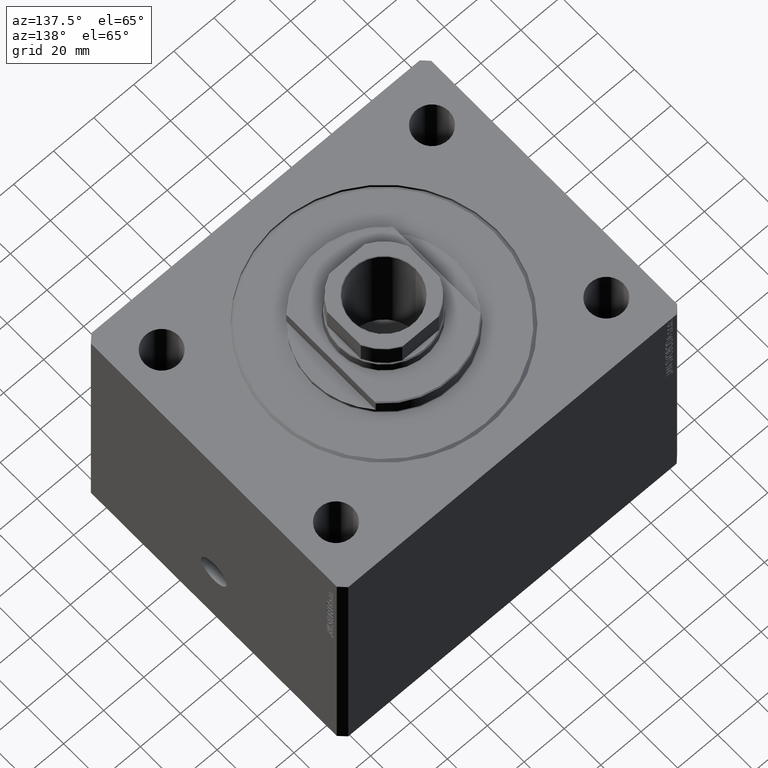
[diagram: clean part render]
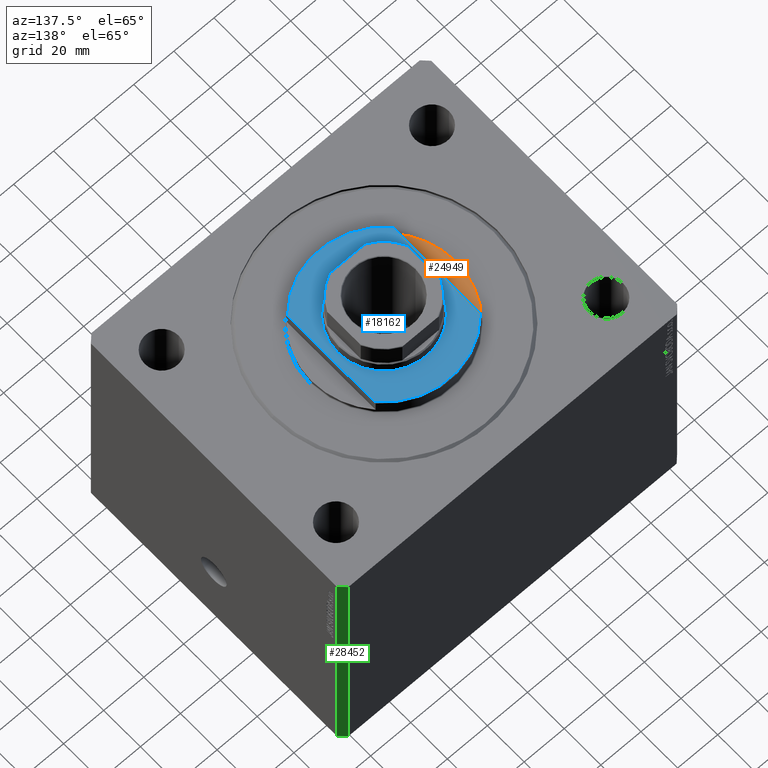
[diagram: same view with three faces highlighted in distinct colors, each labeled with its STEP entity id]
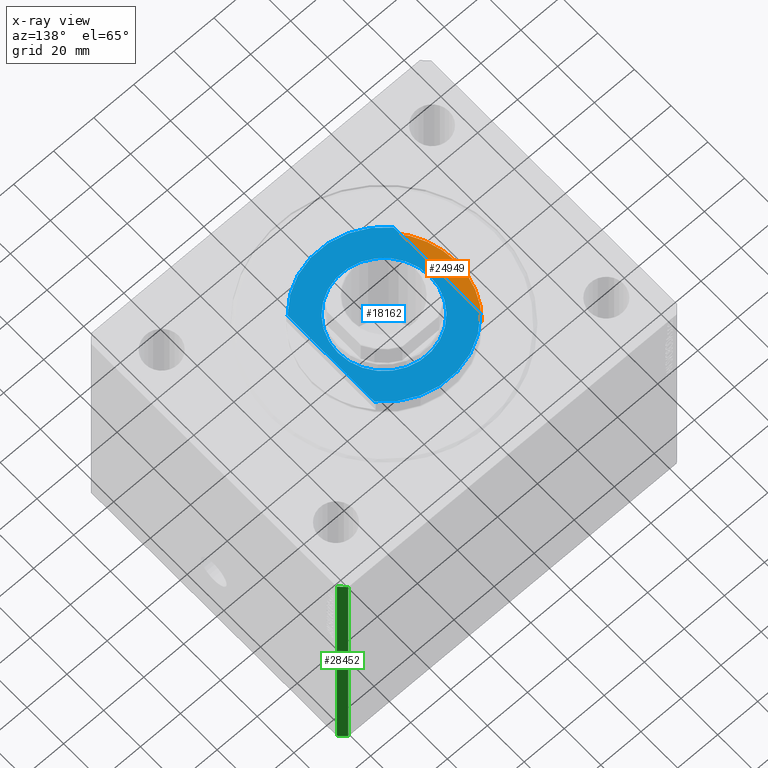
[diagram: x-ray of the same camera — body ghosted, the three highlighted faces saturated]
A machine part, auxiliary view with three faces highlighted in distinct colors.
The next image is the same camera in x-ray (body ghosted, the three faces saturated) — at least one of them is partly hidden behind the body in this view.
Their STEP definitions:

[orange] entity #24949 — the highlighted planar face has unit normal (0, 0, 1).
#1002 = ORIENTED_EDGE ( 'NONE', *, *, #41957, .T. ) ;
#2600 = AXIS2_PLACEMENT_3D ( 'NONE', #42148, #3832, #42590 ) ;
#2856 = CARTESIAN_POINT ( 'NONE',  ( 26.50000000000000000, -24.36698586202240691, -2.000000000000000000 ) ) ;
#3832 = DIRECTION ( 'NONE',  ( 0.000000000000000000, 0.000000000000000000, -1.000000000000000000 ) ) ;
#4597 = VERTEX_POINT ( 'NONE', #41248 ) ;
#6908 = ORIENTED_EDGE ( 'NONE', *, *, #38277, .F. ) ;
#7147 = EDGE_LOOP ( 'NONE', ( #7230, #1002, #6908 ) ) ;
#7180 = CARTESIAN_POINT ( 'NONE',  ( 0.000000000000000000, 0.000000000000000000, -2.000000000000000000 ) ) ;
#7230 = ORIENTED_EDGE ( 'NONE', *, *, #42303, .T. ) ;
#9027 = LINE ( 'NONE', #33368, #16766 ) ;
#16766 = VECTOR ( 'NONE', #22776, 1000.000000000000000 ) ;
#18004 = VERTEX_POINT ( 'NONE', #41266 ) ;
#21372 = DIRECTION ( 'NONE',  ( -1.000000000000000000, 0.000000000000000000, 0.000000000000000000 ) ) ;
#21621 = FACE_OUTER_BOUND ( 'NONE', #7147, .T. ) ;
#21717 = AXIS2_PLACEMENT_3D ( 'NONE', #7180, #34915, #21372 ) ;
#22470 = CIRCLE ( 'NONE', #25332, 36.00000000000000000 ) ;
#22776 = DIRECTION ( 'NONE',  ( 0.000000000000000000, -1.000000000000000000, -0.000000000000000000 ) ) ;
#23938 = DIRECTION ( 'NONE',  ( -1.000000000000000000, 0.000000000000000000, 0.000000000000000000 ) ) ;
#24163 = CARTESIAN_POINT ( 'NONE',  ( 0.000000000000000000, 0.000000000000000000, -2.000000000000000000 ) ) ;
#24949 = ADVANCED_FACE ( 'NONE', ( #21621 ), #27968, .T. ) ;
#25332 = AXIS2_PLACEMENT_3D ( 'NONE', #24163, #40409, #23938 ) ;
#27968 = PLANE ( 'NONE',  #2600 ) ;
#33368 = CARTESIAN_POINT ( 'NONE',  ( 26.50000000000000000, -36.36963018783666257, -2.000000000000000000 ) ) ;
#34915 = DIRECTION ( 'NONE',  ( 0.000000000000000000, 0.000000000000000000, -1.000000000000000000 ) ) ;
#35408 = CIRCLE ( 'NONE', #21717, 36.00000000000000000 ) ;
#38277 = EDGE_CURVE ( 'NONE', #18004, #40272, #9027, .T. ) ;
#40272 = VERTEX_POINT ( 'NONE', #2856 ) ;
#40409 = DIRECTION ( 'NONE',  ( 0.000000000000000000, 0.000000000000000000, -1.000000000000000000 ) ) ;
#41248 = CARTESIAN_POINT ( 'NONE',  ( 36.00000000000000000, 0.000000000000000000, -2.000000000000000000 ) ) ;
#41266 = CARTESIAN_POINT ( 'NONE',  ( 26.50000000000000000, 24.36698586202240691, -2.000000000000000000 ) ) ;
#41957 = EDGE_CURVE ( 'NONE', #4597, #40272, #35408, .T. ) ;
#42148 = CARTESIAN_POINT ( 'NONE',  ( 0.000000000000000000, 0.000000000000000000, -2.000000000000000000 ) ) ;
#42303 = EDGE_CURVE ( 'NONE', #18004, #4597, #22470, .T. ) ;
#42590 = DIRECTION ( 'NONE',  ( 1.000000000000000000, 0.000000000000000000, 0.000000000000000000 ) ) ;

[blue] entity #18162 — the highlighted planar face has unit normal (0, 0, 1).
#538 = AXIS2_PLACEMENT_3D ( 'NONE', #2547, #3215, #44465 ) ;
#2547 = CARTESIAN_POINT ( 'NONE',  ( 0.000000000000000000, 0.000000000000000000, -8.000000000000000000 ) ) ;
#2829 = DIRECTION ( 'NONE',  ( -1.000000000000000000, 0.000000000000000000, -0.000000000000000000 ) ) ;
#3215 = DIRECTION ( 'NONE',  ( 0.000000000000000000, 0.000000000000000000, -1.000000000000000000 ) ) ;
#3432 = AXIS2_PLACEMENT_3D ( 'NONE', #37477, #27806, #17415 ) ;
#3940 = DIRECTION ( 'NONE',  ( 0.000000000000000000, -1.000000000000000000, -0.000000000000000000 ) ) ;
#5779 = DIRECTION ( 'NONE',  ( 0.000000000000000000, 0.000000000000000000, -1.000000000000000000 ) ) ;
#6299 = ORIENTED_EDGE ( 'NONE', *, *, #42762, .T. ) ;
#7188 = CARTESIAN_POINT ( 'NONE',  ( 0.000000000000000000, 0.000000000000000000, -8.000000000000000000 ) ) ;
#9174 = CIRCLE ( 'NONE', #538, 35.49999999999996447 ) ;
#9287 = CARTESIAN_POINT ( 'NONE',  ( -26.50000000000000000, -36.36963018783666257, -8.000000000000000000 ) ) ;
#9378 = PLANE ( 'NONE',  #43477 ) ;
#9602 = FACE_OUTER_BOUND ( 'NONE', #14773, .T. ) ;
#9879 = EDGE_LOOP ( 'NONE', ( #36659, #42290 ) ) ;
#14132 = EDGE_CURVE ( 'NONE', #21248, #34644, #15828, .T. ) ;
#14628 = DIRECTION ( 'NONE',  ( -1.000000000000000000, 0.000000000000000000, 0.000000000000000000 ) ) ;
#14773 = EDGE_LOOP ( 'NONE', ( #42505, #30469, #6299, #31301 ) ) ;
#15285 = CIRCLE ( 'NONE', #17436, 23.00000000000001776 ) ;
#15828 = LINE ( 'NONE', #9287, #37685 ) ;
#17415 = DIRECTION ( 'NONE',  ( -1.000000000000000000, 0.000000000000000000, 0.000000000000000000 ) ) ;
#17436 = AXIS2_PLACEMENT_3D ( 'NONE', #35300, #42964, #42287 ) ;
#17449 = CARTESIAN_POINT ( 'NONE',  ( 23.00000000000001776, 2.816687638038914718E-15, -8.000000000000000000 ) ) ;
#18162 = ADVANCED_FACE ( 'NONE', ( #33729, #9602 ), #9378, .T. ) ;
#21248 = VERTEX_POINT ( 'NONE', #40727 ) ;
#22042 = CARTESIAN_POINT ( 'NONE',  ( -26.50000000000000711, -23.62202362203537476, -8.000000000000000000 ) ) ;
#23571 = CARTESIAN_POINT ( 'NONE',  ( 26.50000000000000000, -36.36963018783666257, -8.000000000000000000 ) ) ;
#24464 = LINE ( 'NONE', #23571, #27164 ) ;
#24550 = DIRECTION ( 'NONE',  ( 0.000000000000000000, 0.000000000000000000, -1.000000000000000000 ) ) ;
#26496 = CIRCLE ( 'NONE', #3432, 23.00000000000001776 ) ;
#27164 = VECTOR ( 'NONE', #3940, 1000.000000000000000 ) ;
#27531 = CIRCLE ( 'NONE', #36884, 35.49999999999996447 ) ;
#27806 = DIRECTION ( 'NONE',  ( -0.000000000000000000, -0.000000000000000000, 1.000000000000000000 ) ) ;
#28415 = EDGE_CURVE ( 'NONE', #36586, #38075, #24464, .T. ) ;
#29086 = EDGE_CURVE ( 'NONE', #21248, #36586, #9174, .T. ) ;
#29843 = EDGE_CURVE ( 'NONE', #43457, #44354, #26496, .T. ) ;
#30469 = ORIENTED_EDGE ( 'NONE', *, *, #28415, .T. ) ;
#31301 = ORIENTED_EDGE ( 'NONE', *, *, #14132, .F. ) ;
#33729 = FACE_BOUND ( 'NONE', #9879, .T. ) ;
#34644 = VERTEX_POINT ( 'NONE', #22042 ) ;
#35069 = DIRECTION ( 'NONE',  ( -0.000000000000000000, -1.000000000000000000, -0.000000000000000000 ) ) ;
#35300 = CARTESIAN_POINT ( 'NONE',  ( 0.000000000000000000, 0.000000000000000000, -8.000000000000000000 ) ) ;
#35545 = EDGE_CURVE ( 'NONE', #44354, #43457, #15285, .T. ) ;
#36586 = VERTEX_POINT ( 'NONE', #41216 ) ;
#36659 = ORIENTED_EDGE ( 'NONE', *, *, #29843, .T. ) ;
#36662 = CARTESIAN_POINT ( 'NONE',  ( 0.000000000000000000, 0.000000000000000000, -8.000000000000000000 ) ) ;
#36884 = AXIS2_PLACEMENT_3D ( 'NONE', #7188, #24550, #14628 ) ;
#37477 = CARTESIAN_POINT ( 'NONE',  ( 0.000000000000000000, 0.000000000000000000, -8.000000000000000000 ) ) ;
#37685 = VECTOR ( 'NONE', #35069, 1000.000000000000000 ) ;
#38075 = VERTEX_POINT ( 'NONE', #39737 ) ;
#39737 = CARTESIAN_POINT ( 'NONE',  ( 26.50000000000000000, -23.62202362203536765, -8.000000000000000000 ) ) ;
#40727 = CARTESIAN_POINT ( 'NONE',  ( -26.50000000000000000, 23.62202362203536765, -8.000000000000000000 ) ) ;
#41216 = CARTESIAN_POINT ( 'NONE',  ( 26.50000000000000000, 23.62202362203536765, -8.000000000000000000 ) ) ;
#42287 = DIRECTION ( 'NONE',  ( -1.000000000000000000, 0.000000000000000000, 0.000000000000000000 ) ) ;
#42290 = ORIENTED_EDGE ( 'NONE', *, *, #35545, .T. ) ;
#42505 = ORIENTED_EDGE ( 'NONE', *, *, #29086, .T. ) ;
#42762 = EDGE_CURVE ( 'NONE', #38075, #34644, #27531, .T. ) ;
#42964 = DIRECTION ( 'NONE',  ( -0.000000000000000000, -0.000000000000000000, 1.000000000000000000 ) ) ;
#43457 = VERTEX_POINT ( 'NONE', #44502 ) ;
#43477 = AXIS2_PLACEMENT_3D ( 'NONE', #36662, #5779, #2829 ) ;
#44354 = VERTEX_POINT ( 'NONE', #17449 ) ;
#44465 = DIRECTION ( 'NONE',  ( -1.000000000000000000, 0.000000000000000000, 0.000000000000000000 ) ) ;
#44502 = CARTESIAN_POINT ( 'NONE',  ( -23.00000000000001776, 0.000000000000000000, -8.000000000000000000 ) ) ;

[green] entity #28452 — the highlighted planar face has unit normal (0.7071, 0.7071, 0).
#376 = DIRECTION ( 'NONE',  ( 0.7071067811865588970, 0.7071067811865361374, -0.000000000000000000 ) ) ;
#1819 = LINE ( 'NONE', #15787, #38270 ) ;
#2036 = ORIENTED_EDGE ( 'NONE', *, *, #24142, .F. ) ;
#2199 = CARTESIAN_POINT ( 'NONE',  ( 85.00000000000052580, 66.99999999999995737, -130.0000000000000000 ) ) ;
#4062 = VERTEX_POINT ( 'NONE', #32198 ) ;
#4698 = CARTESIAN_POINT ( 'NONE',  ( 82.00000000000056843, 70.00000000000000000, 0.000000000000000000 ) ) ;
#6700 = CARTESIAN_POINT ( 'NONE',  ( 85.00000000000052580, 66.99999999999995737, -130.0000000000000000 ) ) ;
#7124 = VERTEX_POINT ( 'NONE', #41992 ) ;
#8292 = LINE ( 'NONE', #2199, #43359 ) ;
#10524 = VECTOR ( 'NONE', #39932, 1000.000000000000000 ) ;
#12196 = LINE ( 'NONE', #23010, #10524 ) ;
#13244 = PLANE ( 'NONE',  #36529 ) ;
#13268 = CARTESIAN_POINT ( 'NONE',  ( 82.00000000000056843, 70.00000000000000000, -130.0000000000000000 ) ) ;
#15636 = VECTOR ( 'NONE', #34301, 1000.000000000000114 ) ;
#15787 = CARTESIAN_POINT ( 'NONE',  ( 82.00000000000056843, 70.00000000000000000, -130.0000000000000000 ) ) ;
#15953 = DIRECTION ( 'NONE',  ( -0.7071067811865361374, 0.7071067811865588970, 0.000000000000000000 ) ) ;
#20047 = ORIENTED_EDGE ( 'NONE', *, *, #27961, .F. ) ;
#21785 = VERTEX_POINT ( 'NONE', #13268 ) ;
#21826 = EDGE_LOOP ( 'NONE', ( #20047, #2036, #34757, #32064 ) ) ;
#23010 = CARTESIAN_POINT ( 'NONE',  ( 85.00000000000052580, 66.99999999999995737, -130.0000000000000000 ) ) ;
#24142 = EDGE_CURVE ( 'NONE', #4062, #7124, #12196, .T. ) ;
#27094 = LINE ( 'NONE', #37223, #15636 ) ;
#27899 = DIRECTION ( 'NONE',  ( -0.7071067811865361374, 0.7071067811865588970, 0.000000000000000000 ) ) ;
#27961 = EDGE_CURVE ( 'NONE', #7124, #31722, #27094, .T. ) ;
#28452 = ADVANCED_FACE ( 'NONE', ( #37809 ), #13244, .T. ) ;
#31722 = VERTEX_POINT ( 'NONE', #4698 ) ;
#32064 = ORIENTED_EDGE ( 'NONE', *, *, #40907, .T. ) ;
#32198 = CARTESIAN_POINT ( 'NONE',  ( 85.00000000000052580, 66.99999999999995737, -130.0000000000000000 ) ) ;
#34301 = DIRECTION ( 'NONE',  ( -0.7071067811865361374, 0.7071067811865588970, 0.000000000000000000 ) ) ;
#34757 = ORIENTED_EDGE ( 'NONE', *, *, #42967, .T. ) ;
#36529 = AXIS2_PLACEMENT_3D ( 'NONE', #6700, #376, #27899 ) ;
#37223 = CARTESIAN_POINT ( 'NONE',  ( 85.00000000000052580, 66.99999999999995737, 0.000000000000000000 ) ) ;
#37809 = FACE_OUTER_BOUND ( 'NONE', #21826, .T. ) ;
#38270 = VECTOR ( 'NONE', #43299, 1000.000000000000000 ) ;
#39932 = DIRECTION ( 'NONE',  ( 0.000000000000000000, 0.000000000000000000, 1.000000000000000000 ) ) ;
#40907 = EDGE_CURVE ( 'NONE', #21785, #31722, #1819, .T. ) ;
#41992 = CARTESIAN_POINT ( 'NONE',  ( 85.00000000000052580, 66.99999999999995737, 0.000000000000000000 ) ) ;
#42967 = EDGE_CURVE ( 'NONE', #4062, #21785, #8292, .T. ) ;
#43299 = DIRECTION ( 'NONE',  ( 0.000000000000000000, 0.000000000000000000, 1.000000000000000000 ) ) ;
#43359 = VECTOR ( 'NONE', #15953, 1000.000000000000114 ) ;